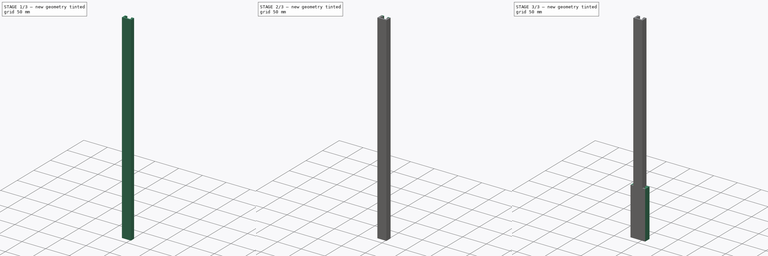
[diagram: build sequence overview — one tinted view per stage of 3, left to right]
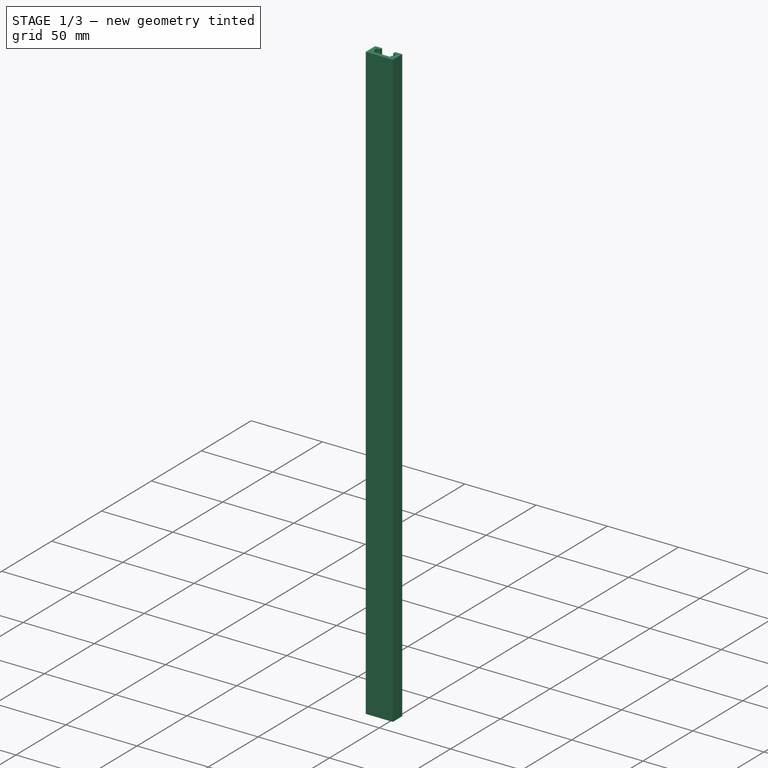
[diagram: stage 1 of 3 — iso view after this stage's code; geometry added in this stage tinted green]
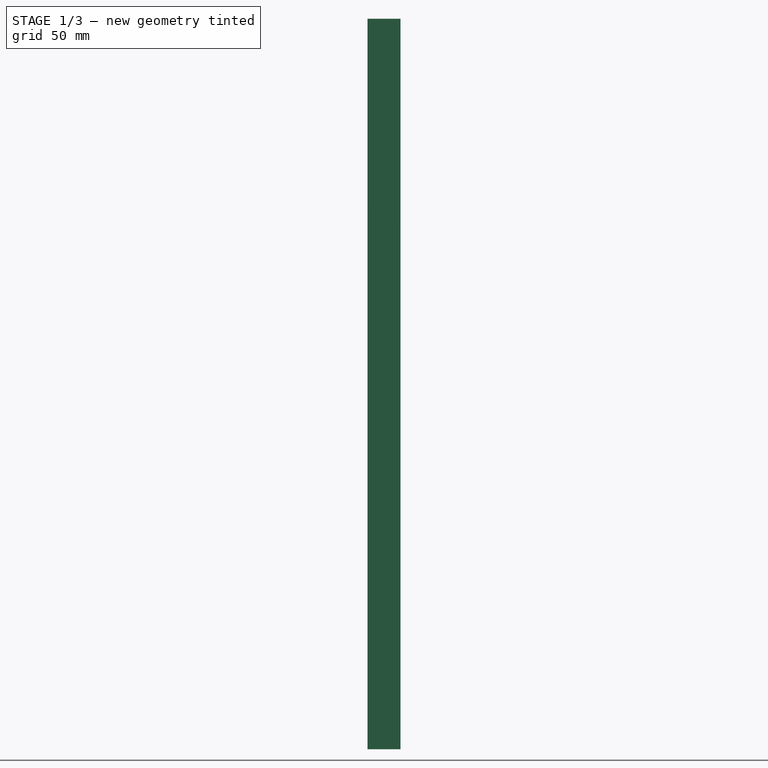
[diagram: stage 1 of 3 — front view after this stage's code; geometry added in this stage tinted green]
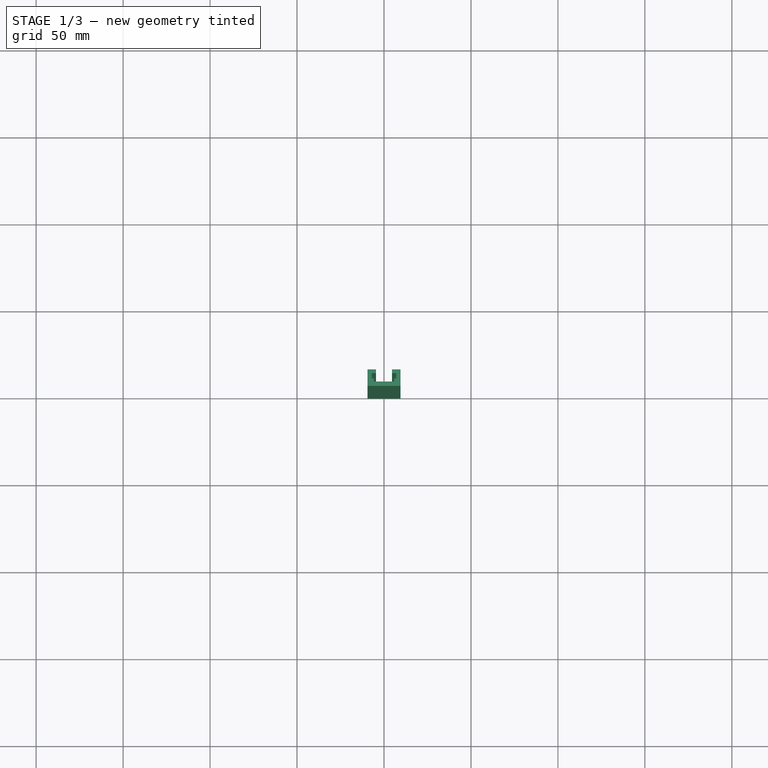
[diagram: stage 1 of 3 — top view after this stage's code; geometry added in this stage tinted green]
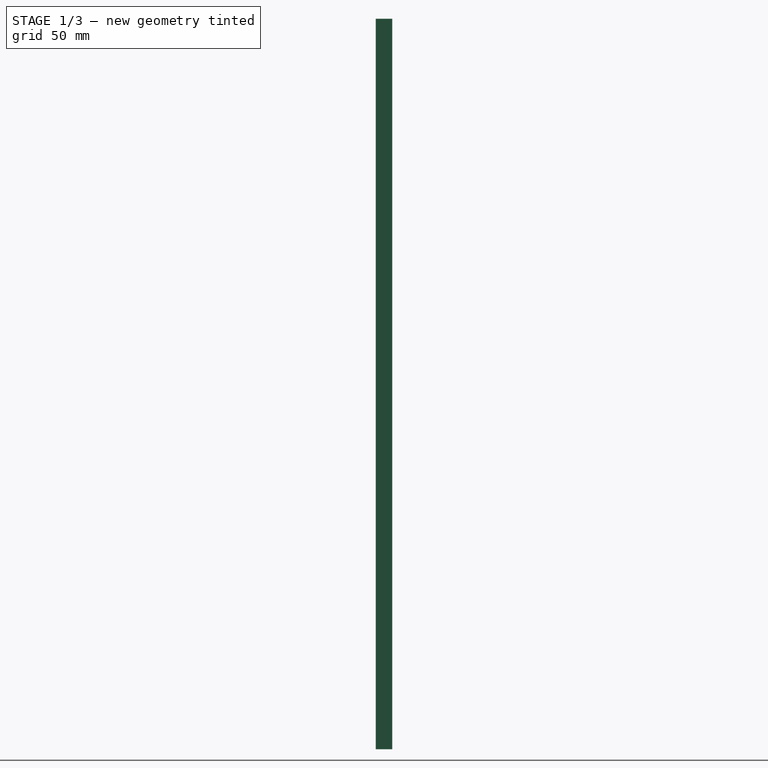
[diagram: stage 1 of 3 — right view after this stage's code; geometry added in this stage tinted green]
FCSTD DOCUMENT  (FreeCAD 0.22R35176 (Git))
Label: slots
License: All rights reserved
LicenseURL: https://en.wikipedia.org/wiki/All_rights_reserved
objects: Sketcher::SketchObject×6, PartDesign::Pad×6, PartDesign::Body×6
note: 24 computed .brp shape members not serialized (recipe doc carries the construction recipe); baked Part::Feature solids carry a one-line shape summary decoded from their .brp
EXTERNAL_REF file=drill_press_table.FCStd obj=Spreadsheet

FEATURE [PartDesign::Body] Body003  label="slim_slot_19x9.5"
  Group = -> [Sketch003,Pad003]
  Origin = -> Origin003
  Tip = -> Pad003
FEATURE [Sketcher::SketchObject] Sketch004
  FullyConstrained = false
  MapMode = 5
  Support = -> [XY_Plane004]
  sketch-geometry (16):
    g0: LineSegment StartX=-9.5 StartY=9.5 StartZ=0 EndX=-4.6 EndY=9.5 EndZ=0
    g1: LineSegment StartX=9.5 StartY=9.5 StartZ=0 EndX=9.5 EndY=0 EndZ=0
    g2: LineSegment StartX=9.5 StartY=0 StartZ=0 EndX=-9.5 EndY=0 EndZ=0
    g3: LineSegment StartX=-9.5 StartY=0 StartZ=0 EndX=-9.5 EndY=9.5 EndZ=0
    g4: LineSegment StartX=5.8 StartY=4.35 StartZ=0 EndX=5.8 EndY=2.5 EndZ=0
    g5: LineSegment StartX=5.8 StartY=2.5 StartZ=0 EndX=-5.8 EndY=2.5 EndZ=0
    g6: LineSegment StartX=-5.8 StartY=2.5 StartZ=0 EndX=-5.8 EndY=4.35 EndZ=0
    g7: LineSegment StartX=-7 StartY=7.35 StartZ=0 EndX=-4.6 EndY=7.35 EndZ=0
    g8: LineSegment StartX=7 StartY=7.35 StartZ=0 EndX=7 EndY=4.35 EndZ=0
    g9: LineSegment StartX=7 StartY=4.35 StartZ=0 EndX=5.8 EndY=4.35 EndZ=0
    g10: LineSegment StartX=-7 StartY=4.35 StartZ=0 EndX=-7 EndY=7.35 EndZ=0
    g11: LineSegment StartX=4.6 StartY=9.5 StartZ=0 EndX=4.6 EndY=7.35 EndZ=0
    g12: LineSegment StartX=-4.6 StartY=7.35 StartZ=0 EndX=-4.6 EndY=9.5 EndZ=0
    g13: LineSegment StartX=4.6 StartY=9.5 StartZ=0 EndX=9.5 EndY=9.5 EndZ=0
    g14: LineSegment StartX=4.6 StartY=7.35 StartZ=0 EndX=7 EndY=7.35 EndZ=0
    g15: LineSegment StartX=-5.8 StartY=4.35 StartZ=0 EndX=-7 EndY=4.35 EndZ=0
  constraints (41):
    c: Coincident(g13,g1)
    c: Coincident(g1,g2)
    c: Coincident(g2,g3)
    c: Coincident(g3,g0)
    c: Horizontal(g0)
    c: Horizontal(g2)
    c: Vertical(g1)
    c: Vertical(g3)
    c: Symmetric(g2,g1,g-1)
    c: DistanceX(g2,g2) = 19
    c: DistanceY(g3,g3) = 9.5
    c: Coincident(g4,g5)
    c: Coincident(g5,g6)
    c: Horizontal(g5)
    c: Vertical(g4)
    c: Vertical(g6)
    c: DistanceY(g5,g0) = 7
    c: DistanceX(g5,g5) = 11.6
    c: Coincident(g14,g8)
    c: Coincident(g8,g9)
    c: Coincident(g15,g10)
    c: Coincident(g10,g7)
    c: Horizontal(g7)
    c: Horizontal(g9)
    c: Vertical(g8)
    c: Vertical(g10)
    c: DistanceX(g15,g9) = 14
    c: DistanceX(g15,g-1) = 7
    c: DistanceY(g8,g8) = 3
    c: DistanceY(g7,g0) = 2.15
    c: Vertical(g11)
    c: Vertical(g12)
    c: Coincident(g12,g0)
    c: Coincident(g11,g13)
    c: Coincident(g11,g14)
    c: Coincident(g12,g7)
    c: Coincident(g15,g6)
    c: Coincident(g4,g9)
    c: DistanceX(g5,g-1) = 5.8
    c: DistanceX(g7,g11) = 9.2
    c: DistanceX(g7,g-1) = 4.6
FEATURE [PartDesign::Pad] Pad004
  Direction = (0,0,1)
  Length = 420
  Length2 = 10
  Profile = -> Sketch004
  ReferenceAxis = -> Sketch004 [N_Axis]
  Type = 0
  expr: Length = drill_press_table#Spreadsheet.table_depth
FEATURE [PartDesign::Body] Body004  label="slim_slot_19x9.5x420"
  Group = -> [Sketch004,Pad004]
  Origin = -> Origin004
  Tip = -> Pad004
FEATURE [Sketcher::SketchObject] Sketch005
  FullyConstrained = false
  MapMode = 5
  Support = -> [XY_Plane005]
  sketch-geometry (16):
    g0: LineSegment StartX=-9.5 StartY=9.5 StartZ=0 EndX=-4.6 EndY=9.5 EndZ=0
    g1: LineSegment StartX=9.5 StartY=9.5 StartZ=0 EndX=9.5 EndY=0 EndZ=0
    g2: LineSegment StartX=9.5 StartY=0 StartZ=0 EndX=-9.5 EndY=0 EndZ=0
    g3: LineSegment StartX=-9.5 StartY=0 StartZ=0 EndX=-9.5 EndY=9.5 EndZ=0
    g4: LineSegment StartX=5.8 StartY=4.35 StartZ=0 EndX=5.8 EndY=2.5 EndZ=0
    g5: LineSegment StartX=5.8 StartY=2.5 StartZ=0 EndX=-5.8 EndY=2.5 EndZ=0
    g6: LineSegment StartX=-5.8 StartY=2.5 StartZ=0 EndX=-5.8 EndY=4.35 EndZ=0
    g7: LineSegment StartX=-7 StartY=7.35 StartZ=0 EndX=-4.6 EndY=7.35 EndZ=0
    g8: LineSegment StartX=7 StartY=7.35 StartZ=0 EndX=7 EndY=4.35 EndZ=0
    g9: LineSegment StartX=7 StartY=4.35 StartZ=0 EndX=5.8 EndY=4.35 EndZ=0
    g10: LineSegment StartX=-7 StartY=4.35 StartZ=0 EndX=-7 EndY=7.35 EndZ=0
    g11: LineSegment StartX=4.6 StartY=9.5 StartZ=0 EndX=4.6 EndY=7.35 EndZ=0
    g12: LineSegment StartX=-4.6 StartY=7.35 StartZ=0 EndX=-4.6 EndY=9.5 EndZ=0
    g13: LineSegment StartX=4.6 StartY=9.5 StartZ=0 EndX=9.5 EndY=9.5 EndZ=0
    g14: LineSegment StartX=4.6 StartY=7.35 StartZ=0 EndX=7 EndY=7.35 EndZ=0
    g15: LineSegment StartX=-5.8 StartY=4.35 StartZ=0 EndX=-7 EndY=4.35 EndZ=0
  constraints (41):
    c: Coincident(g13,g1)
    c: Coincident(g1,g2)
    c: Coincident(g2,g3)
    c: Coincident(g3,g0)
    c: Horizontal(g0)
    c: Horizontal(g2)
    c: Vertical(g1)
    c: Vertical(g3)
    c: Symmetric(g2,g1,g-1)
    c: DistanceX(g2,g2) = 19
    c: DistanceY(g3,g3) = 9.5
    c: Coincident(g4,g5)
    c: Coincident(g5,g6)
    c: Horizontal(g5)
    c: Vertical(g4)
    c: Vertical(g6)
    c: DistanceY(g5,g0) = 7
    c: DistanceX(g5,g5) = 11.6
    c: Coincident(g14,g8)
    c: Coincident(g8,g9)
    c: Coincident(g15,g10)
    c: Coincident(g10,g7)
    c: Horizontal(g7)
    c: Horizontal(g9)
    c: Vertical(g8)
    c: Vertical(g10)
    c: DistanceX(g15,g9) = 14
    c: DistanceX(g15,g-1) = 7
    c: DistanceY(g8,g8) = 3
    c: DistanceY(g7,g0) = 2.15
    c: Vertical(g11)
    c: Vertical(g12)
    c: Coincident(g12,g0)
    c: Coincident(g11,g13)
    c: Coincident(g11,g14)
    c: Coincident(g12,g7)
    c: Coincident(g15,g6)
    c: Coincident(g4,g9)
    c: DistanceX(g5,g-1) = 5.8
    c: DistanceX(g7,g11) = 9.2
    c: DistanceX(g7,g-1) = 4.6
FEATURE [PartDesign::Pad] Pad005
  Direction = (0,0,1)
  Length = 337.5
  Length2 = 10
  Profile = -> Sketch005
  ReferenceAxis = -> Sketch005 [N_Axis]
  Type = 0
  expr: Length = 337.5
FEATURE [PartDesign::Body] Body005  label="slim_slot_19x9.5x337"
  Group = -> [Sketch005,Pad005]
  Origin = -> Origin005
  Tip = -> Pad005
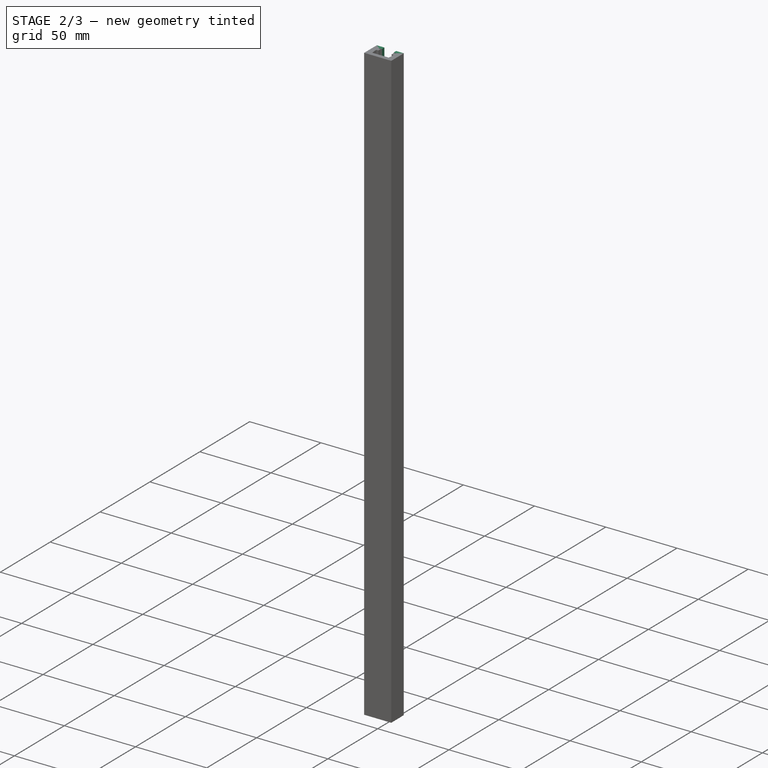
[diagram: stage 2 of 3 — iso view after this stage's code; geometry added in this stage tinted green]
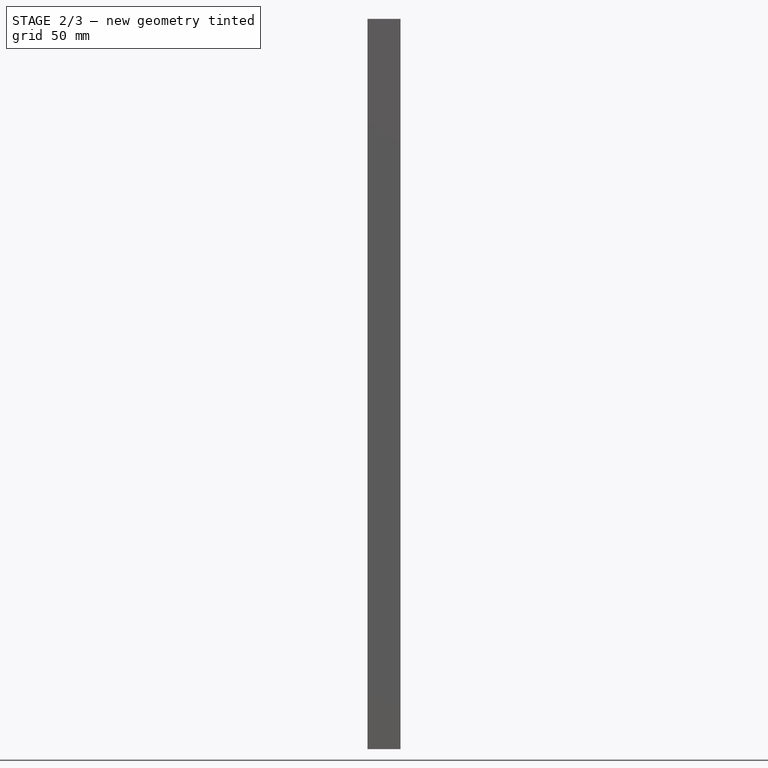
[diagram: stage 2 of 3 — front view after this stage's code; geometry added in this stage tinted green]
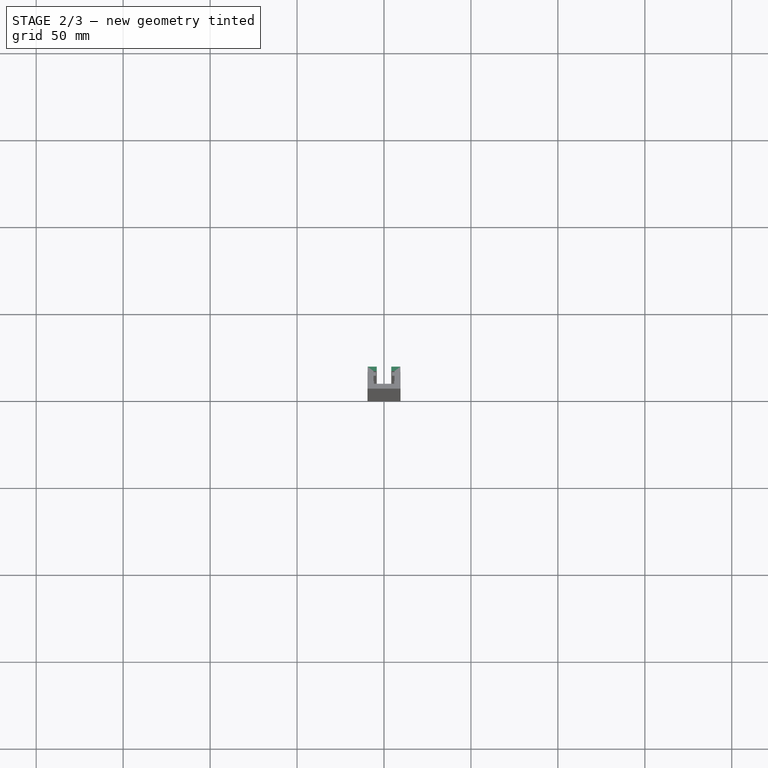
[diagram: stage 2 of 3 — top view after this stage's code; geometry added in this stage tinted green]
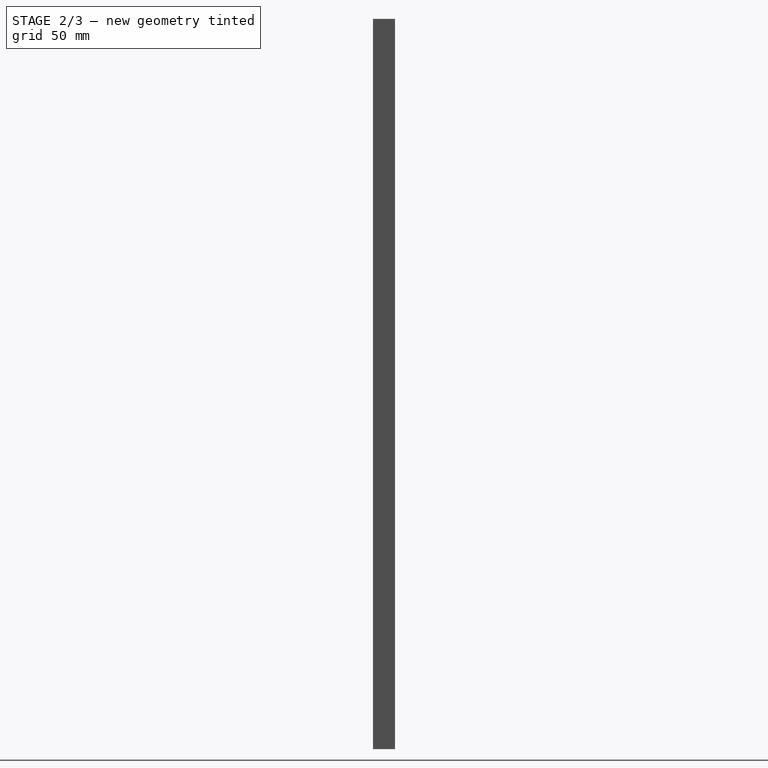
[diagram: stage 2 of 3 — right view after this stage's code; geometry added in this stage tinted green]
FEATURE [PartDesign::Body] Body001  label="slot_19x12.6"
  Group = -> [Sketch001,Pad001]
  Origin = -> Origin001
  Tip = -> Pad001
FEATURE [Sketcher::SketchObject] Sketch002
  FullyConstrained = true
  MapMode = 5
  Support = -> [XY_Plane002]
  expr: Constraints[21] = (18.9 - 12.1) / 2
  sketch-geometry (12):
    g0: LineSegment StartX=-9.45 StartY=12.6 StartZ=0 EndX=-4.15 EndY=12.6 EndZ=0
    g1: LineSegment StartX=9.45 StartY=12.6 StartZ=0 EndX=9.45 EndY=0 EndZ=0
    g2: LineSegment StartX=9.45 StartY=0 StartZ=0 EndX=-9.45 EndY=0 EndZ=0
    g3: LineSegment StartX=-9.45 StartY=0 StartZ=0 EndX=-9.45 EndY=12.6 EndZ=0
    g4: LineSegment StartX=-6.05 StartY=10.1 StartZ=0 EndX=-4.15 EndY=10.1 EndZ=0
    g5: LineSegment StartX=6.05 StartY=10.1 StartZ=0 EndX=6.05 EndY=2.8 EndZ=0
    g6: LineSegment StartX=6.05 StartY=2.8 StartZ=0 EndX=-6.05 EndY=2.8 EndZ=0
    g7: LineSegment StartX=-6.05 StartY=2.8 StartZ=0 EndX=-6.05 EndY=10.1 EndZ=0
    g8: LineSegment StartX=4.15 StartY=12.6 StartZ=0 EndX=4.15 EndY=10.1 EndZ=0
    g9: LineSegment StartX=-4.15 StartY=10.1 StartZ=0 EndX=-4.15 EndY=12.6 EndZ=0
    g10: LineSegment StartX=4.15 StartY=12.6 StartZ=0 EndX=9.45 EndY=12.6 EndZ=0
    g11: LineSegment StartX=4.15 StartY=10.1 StartZ=0 EndX=6.05 EndY=10.1 EndZ=0
  constraints (35):
    c: Coincident(g10,g1)
    c: Coincident(g1,g2)
    c: Coincident(g2,g3)
    c: Coincident(g3,g0)
    c: Horizontal(g0)
    c: Horizontal(g2)
    c: Vertical(g1)
    c: Vertical(g3)
    c: Symmetric(g2,g1,g-1)
    c: DistanceX(g2,g2) = 18.9
    c: DistanceY(g3,g3) = 12.6
    c: Coincident(g11,g5)
    c: Coincident(g5,g6)
    c: Coincident(g6,g7)
    c: Coincident(g7,g4)
    c: Horizontal(g4)
    c: Horizontal(g6)
    c: Vertical(g5)
    c: Vertical(g7)
    c: DistanceY(g2,g6) = 2.8
    c: DistanceX(g6,g6) = 12.1
    c: DistanceX(g2,g6) = 3.4
    c: DistanceY(g5,g11) = 7.3
    c: Vertical(g8)
    c: Vertical(g9)
    c: Coincident(g0,g9)
    c: Coincident(g8,g10)
    c: Coincident(g9,g4)
    c: Coincident(g8,g11)
    c: DistanceX(g0,g8) = 8.3
    c: DistanceX(g4,g-1) = 4.15
    c: Equal(g9,g8)
    c: Equal(g4,g11)
    c: Equal(g7,g5)
    c: Equal(g10,g0)
FEATURE [PartDesign::Pad] Pad002
  Direction = (0,0,1)
  Length = 420
  Length2 = 10
  Profile = -> Sketch002
  ReferenceAxis = -> Sketch002 [N_Axis]
  Type = 0
  expr: Length = drill_press_table#Spreadsheet.table_depth
FEATURE [PartDesign::Body] Body002  label="slot_19x12.6x420"
  Group = -> [Sketch002,Pad002]
  Origin = -> Origin002
  Tip = -> Pad002
FEATURE [Sketcher::SketchObject] Sketch003
  FullyConstrained = false
  MapMode = 5
  Support = -> [XY_Plane003]
  sketch-geometry (16):
    g0: LineSegment StartX=-9.5 StartY=9.5 StartZ=0 EndX=-4.6 EndY=9.5 EndZ=0
    g1: LineSegment StartX=9.5 StartY=9.5 StartZ=0 EndX=9.5 EndY=0 EndZ=0
    g2: LineSegment StartX=9.5 StartY=0 StartZ=0 EndX=-9.5 EndY=0 EndZ=0
    g3: LineSegment StartX=-9.5 StartY=0 StartZ=0 EndX=-9.5 EndY=9.5 EndZ=0
    g4: LineSegment StartX=5.8 StartY=4.35 StartZ=0 EndX=5.8 EndY=2.5 EndZ=0
    g5: LineSegment StartX=5.8 StartY=2.5 StartZ=0 EndX=-5.8 EndY=2.5 EndZ=0
    g6: LineSegment StartX=-5.8 StartY=2.5 StartZ=0 EndX=-5.8 EndY=4.35 EndZ=0
    g7: LineSegment StartX=-7 StartY=7.35 StartZ=0 EndX=-4.6 EndY=7.35 EndZ=0
    g8: LineSegment StartX=7 StartY=7.35 StartZ=0 EndX=7 EndY=4.35 EndZ=0
    g9: LineSegment StartX=7 StartY=4.35 StartZ=0 EndX=5.8 EndY=4.35 EndZ=0
    g10: LineSegment StartX=-7 StartY=4.35 StartZ=0 EndX=-7 EndY=7.35 EndZ=0
    g11: LineSegment StartX=4.6 StartY=9.5 StartZ=0 EndX=4.6 EndY=7.35 EndZ=0
    g12: LineSegment StartX=-4.6 StartY=7.35 StartZ=0 EndX=-4.6 EndY=9.5 EndZ=0
    g13: LineSegment StartX=4.6 StartY=9.5 StartZ=0 EndX=9.5 EndY=9.5 EndZ=0
    g14: LineSegment StartX=4.6 StartY=7.35 StartZ=0 EndX=7 EndY=7.35 EndZ=0
    g15: LineSegment StartX=-5.8 StartY=4.35 StartZ=0 EndX=-7 EndY=4.35 EndZ=0
  constraints (41):
    c: Coincident(g13,g1)
    c: Coincident(g1,g2)
    c: Coincident(g2,g3)
    c: Coincident(g3,g0)
    c: Horizontal(g0)
    c: Horizontal(g2)
    c: Vertical(g1)
    c: Vertical(g3)
    c: Symmetric(g2,g1,g-1)
    c: DistanceX(g2,g2) = 19
    c: DistanceY(g3,g3) = 9.5
    c: Coincident(g4,g5)
    c: Coincident(g5,g6)
    c: Horizontal(g5)
    c: Vertical(g4)
    c: Vertical(g6)
    c: DistanceY(g5,g0) = 7
    c: DistanceX(g5,g5) = 11.6
    c: Coincident(g14,g8)
    c: Coincident(g8,g9)
    c: Coincident(g15,g10)
    c: Coincident(g10,g7)
    c: Horizontal(g7)
    c: Horizontal(g9)
    c: Vertical(g8)
    c: Vertical(g10)
    c: DistanceX(g15,g9) = 14
    c: DistanceX(g15,g-1) = 7
    c: DistanceY(g8,g8) = 3
    c: DistanceY(g7,g0) = 2.15
    c: Vertical(g11)
    c: Vertical(g12)
    c: Coincident(g12,g0)
    c: Coincident(g11,g13)
    c: Coincident(g11,g14)
    c: Coincident(g12,g7)
    c: Coincident(g15,g6)
    c: Coincident(g4,g9)
    c: DistanceX(g5,g-1) = 5.8
    c: DistanceX(g7,g11) = 9.2
    c: DistanceX(g7,g-1) = 4.6
FEATURE [PartDesign::Pad] Pad003
  Direction = (0,0,1)
  Length = 100
  Length2 = 10
  Profile = -> Sketch003
  ReferenceAxis = -> Sketch003 [N_Axis]
  Type = 0
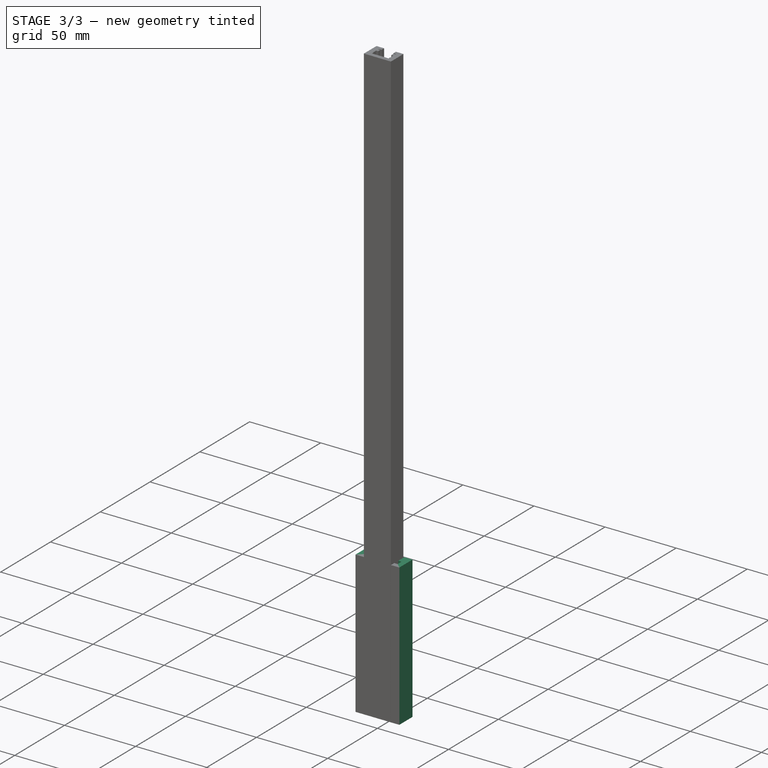
[diagram: stage 3 of 3 — iso view after this stage's code; geometry added in this stage tinted green]
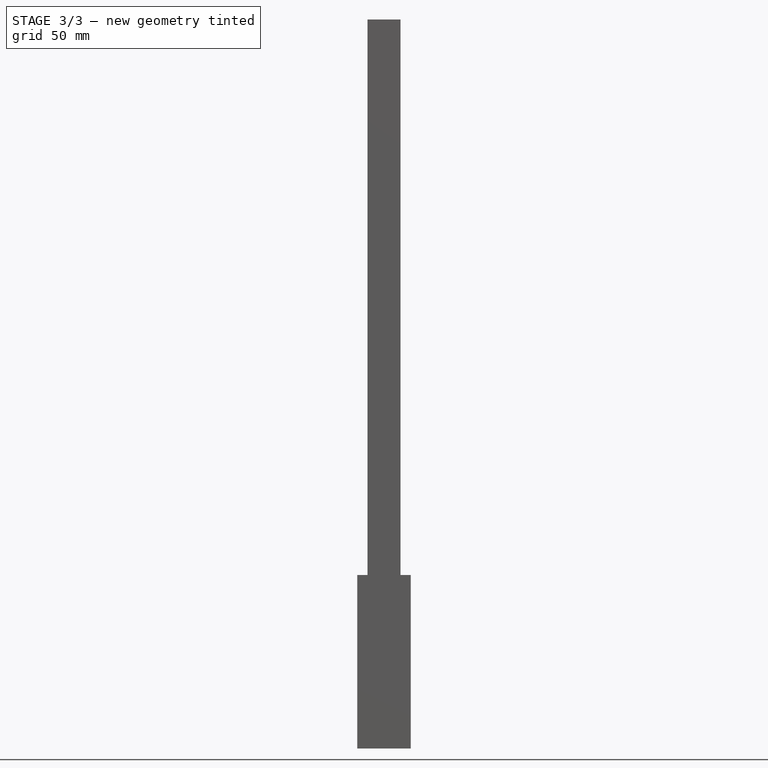
[diagram: stage 3 of 3 — front view after this stage's code; geometry added in this stage tinted green]
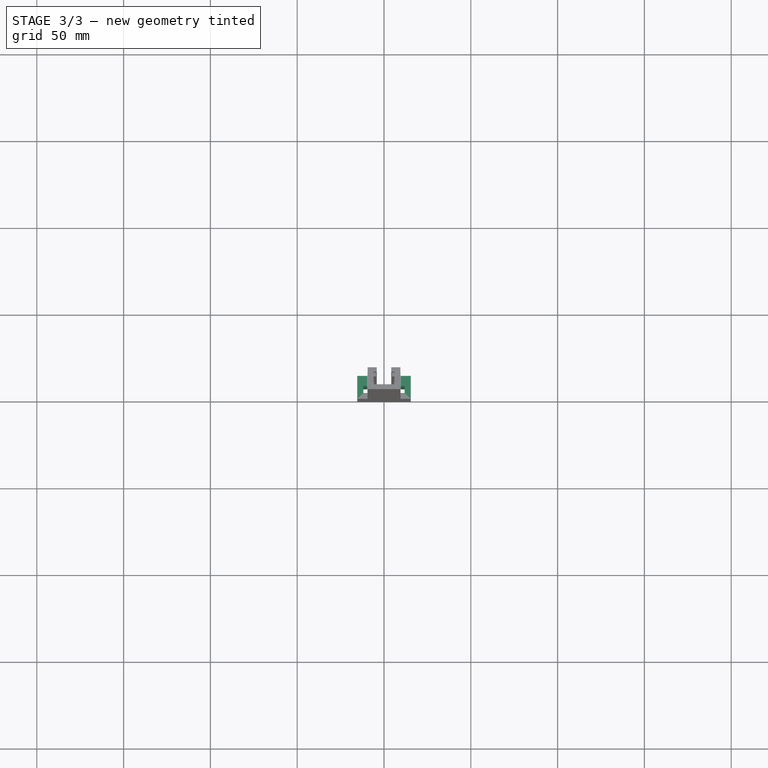
[diagram: stage 3 of 3 — top view after this stage's code; geometry added in this stage tinted green]
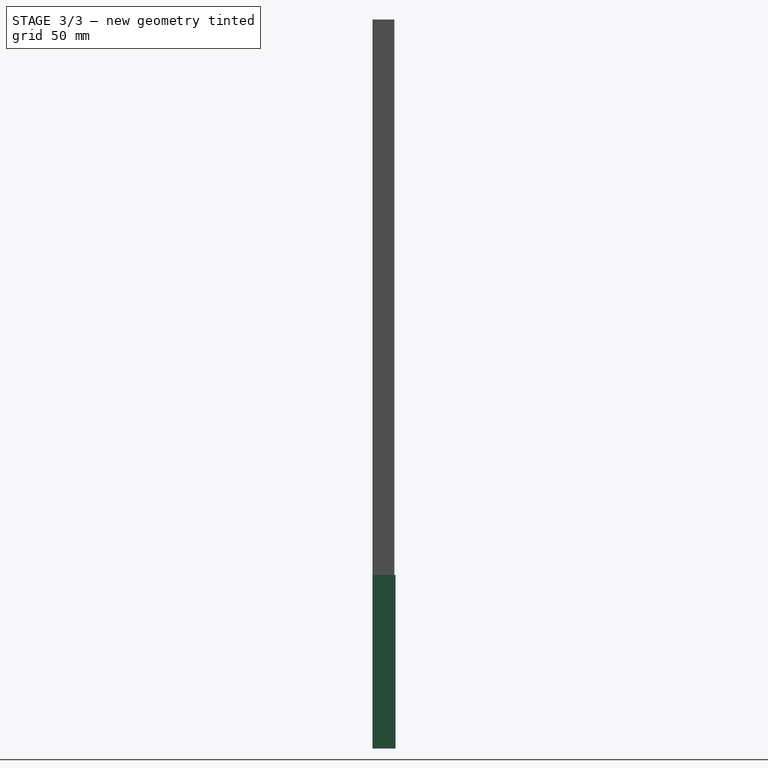
[diagram: stage 3 of 3 — right view after this stage's code; geometry added in this stage tinted green]
FEATURE [Sketcher::SketchObject] Sketch
  FullyConstrained = false
  MapMode = 5
  Support = -> [XY_Plane]
  sketch-geometry (12):
    g0: LineSegment StartX=-15.4 StartY=13.2 StartZ=0 EndX=-9.6 EndY=13.2 EndZ=0
    g1: LineSegment StartX=15.4 StartY=13.2 StartZ=0 EndX=15.4 EndY=0 EndZ=0
    g2: LineSegment StartX=15.4 StartY=0 StartZ=0 EndX=-15.4 EndY=0 EndZ=0
    g3: LineSegment StartX=-15.4 StartY=0 StartZ=0 EndX=-15.4 EndY=13.2 EndZ=0
    g4: LineSegment StartX=9.6 StartY=13.2 StartZ=0 EndX=9.6 EndY=7.2 EndZ=0
    g5: LineSegment StartX=-9.6 StartY=7.2 StartZ=0 EndX=-9.6 EndY=13.2 EndZ=0
    g6: LineSegment StartX=9.6 StartY=13.2 StartZ=0 EndX=15.4 EndY=13.2 EndZ=0
    g7: LineSegment StartX=-11.9 StartY=7.2 StartZ=0 EndX=-9.6 EndY=7.2 EndZ=0
    g8: LineSegment StartX=11.9 StartY=7.2 StartZ=0 EndX=11.9 EndY=3.3 EndZ=0
    g9: LineSegment StartX=11.9 StartY=3.3 StartZ=0 EndX=-11.9 EndY=3.3 EndZ=0
    g10: LineSegment StartX=-11.9 StartY=3.3 StartZ=0 EndX=-11.9 EndY=7.2 EndZ=0
    g11: LineSegment StartX=9.6 StartY=7.2 StartZ=0 EndX=11.9 EndY=7.2 EndZ=0
  constraints (32):
    c: Coincident(g6,g1)
    c: Coincident(g1,g2)
    c: Coincident(g2,g3)
    c: Coincident(g3,g0)
    c: Horizontal(g0)
    c: Horizontal(g2)
    c: Vertical(g1)
    c: Vertical(g3)
    c: Symmetric(g2,g1,g-1)
    c: DistanceX(g2,g1) = 30.8
    c: DistanceY(g1,g6) = 13.2
    c: Vertical(g4)
    c: Vertical(g5)
    c: DistanceY(g4,g6) = 6
    c: Coincident(g0,g5)
    c: Coincident(g4,g6)
    c: DistanceX(g0,g0) = 5.8
    c: DistanceX(g4,g1) = 5.8
    c: Coincident(g11,g8)
    c: Coincident(g8,g9)
    c: Coincident(g9,g10)
    c: Coincident(g10,g7)
    c: Horizontal(g7)
    c: Horizontal(g9)
    c: Vertical(g8)
    c: Vertical(g10)
    c: DistanceX(g9,g9) = 23.8
    c: DistanceY(g2,g9) = 3.3
    c: DistanceY(g9,g7) = 3.9
    c: DistanceX(g2,g9) = 3.5
    c: PointOnObject(g7,g5)
    c: PointOnObject(g11,g4)
FEATURE [PartDesign::Pad] Pad
  Direction = (0,0,1)
  Length = 100
  Length2 = 10
  Profile = -> Sketch
  ReferenceAxis = -> Sketch [N_Axis]
  Type = 0
FEATURE [PartDesign::Body] Body  label="miter_slot_30.8x13.2"
  Group = -> [Sketch,Pad]
  Origin = -> Origin
  Tip = -> Pad
FEATURE [Sketcher::SketchObject] Sketch001
  FullyConstrained = true
  MapMode = 5
  Support = -> [XY_Plane001]
  expr: Constraints[21] = (18.9 - 12.1) / 2
  sketch-geometry (12):
    g0: LineSegment StartX=-9.45 StartY=12.6 StartZ=0 EndX=-4.15 EndY=12.6 EndZ=0
    g1: LineSegment StartX=9.45 StartY=12.6 StartZ=0 EndX=9.45 EndY=0 EndZ=0
    g2: LineSegment StartX=9.45 StartY=0 StartZ=0 EndX=-9.45 EndY=0 EndZ=0
    g3: LineSegment StartX=-9.45 StartY=0 StartZ=0 EndX=-9.45 EndY=12.6 EndZ=0
    g4: LineSegment StartX=-6.05 StartY=10.1 StartZ=0 EndX=-4.15 EndY=10.1 EndZ=0
    g5: LineSegment StartX=6.05 StartY=10.1 StartZ=0 EndX=6.05 EndY=2.8 EndZ=0
    g6: LineSegment StartX=6.05 StartY=2.8 StartZ=0 EndX=-6.05 EndY=2.8 EndZ=0
    g7: LineSegment StartX=-6.05 StartY=2.8 StartZ=0 EndX=-6.05 EndY=10.1 EndZ=0
    g8: LineSegment StartX=4.15 StartY=12.6 StartZ=0 EndX=4.15 EndY=10.1 EndZ=0
    g9: LineSegment StartX=-4.15 StartY=10.1 StartZ=0 EndX=-4.15 EndY=12.6 EndZ=0
    g10: LineSegment StartX=4.15 StartY=12.6 StartZ=0 EndX=9.45 EndY=12.6 EndZ=0
    g11: LineSegment StartX=4.15 StartY=10.1 StartZ=0 EndX=6.05 EndY=10.1 EndZ=0
  constraints (35):
    c: Coincident(g10,g1)
    c: Coincident(g1,g2)
    c: Coincident(g2,g3)
    c: Coincident(g3,g0)
    c: Horizontal(g0)
    c: Horizontal(g2)
    c: Vertical(g1)
    c: Vertical(g3)
    c: Symmetric(g2,g1,g-1)
    c: DistanceX(g2,g2) = 18.9
    c: DistanceY(g3,g3) = 12.6
    c: Coincident(g11,g5)
    c: Coincident(g5,g6)
    c: Coincident(g6,g7)
    c: Coincident(g7,g4)
    c: Horizontal(g4)
    c: Horizontal(g6)
    c: Vertical(g5)
    c: Vertical(g7)
    c: DistanceY(g2,g6) = 2.8
    c: DistanceX(g6,g6) = 12.1
    c: DistanceX(g2,g6) = 3.4
    c: DistanceY(g5,g11) = 7.3
    c: Vertical(g8)
    c: Vertical(g9)
    c: Coincident(g0,g9)
    c: Coincident(g8,g10)
    c: Coincident(g9,g4)
    c: Coincident(g8,g11)
    c: DistanceX(g0,g8) = 8.3
    c: DistanceX(g4,g-1) = 4.15
    c: Equal(g9,g8)
    c: Equal(g4,g11)
    c: Equal(g7,g5)
    c: Equal(g10,g0)
FEATURE [PartDesign::Pad] Pad001
  Direction = (0,0,1)
  Length = 100
  Length2 = 10
  Profile = -> Sketch001
  ReferenceAxis = -> Sketch001 [N_Axis]
  Type = 0
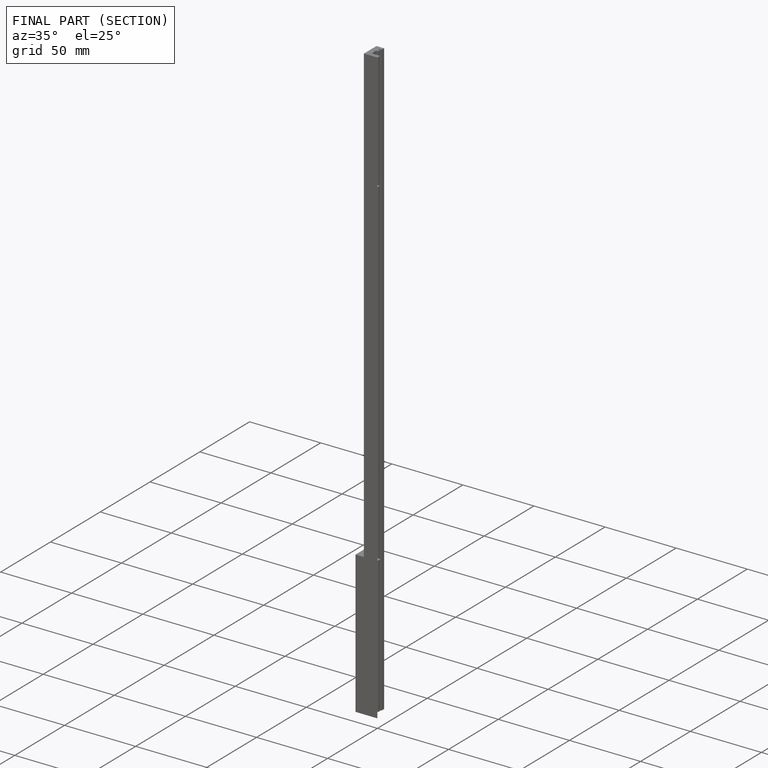
[diagram: finished part — half-section view (interior)]
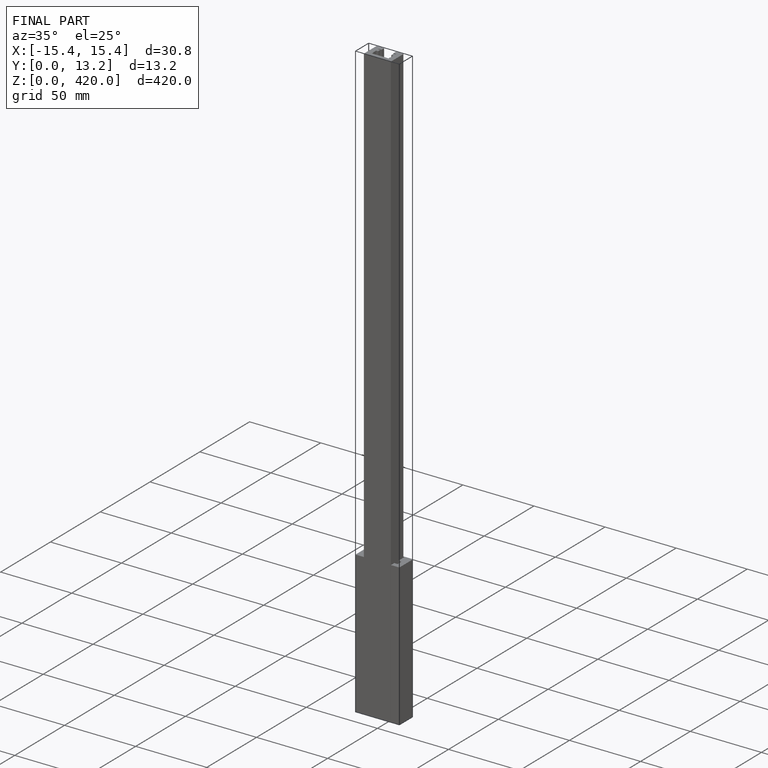
[diagram: finished part — iso view with bounding-box wireframe]
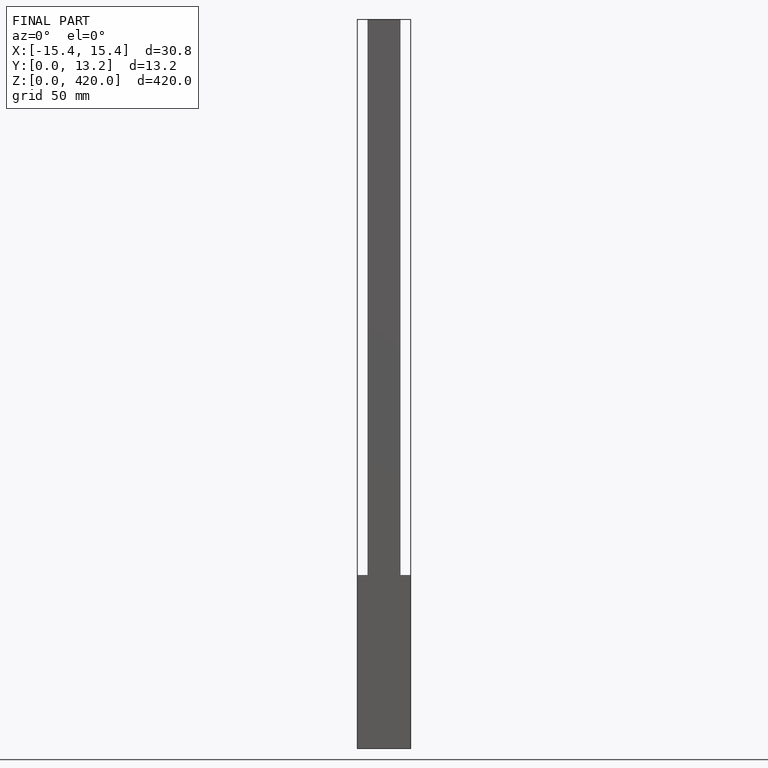
[diagram: finished part — front view with bounding-box wireframe]
